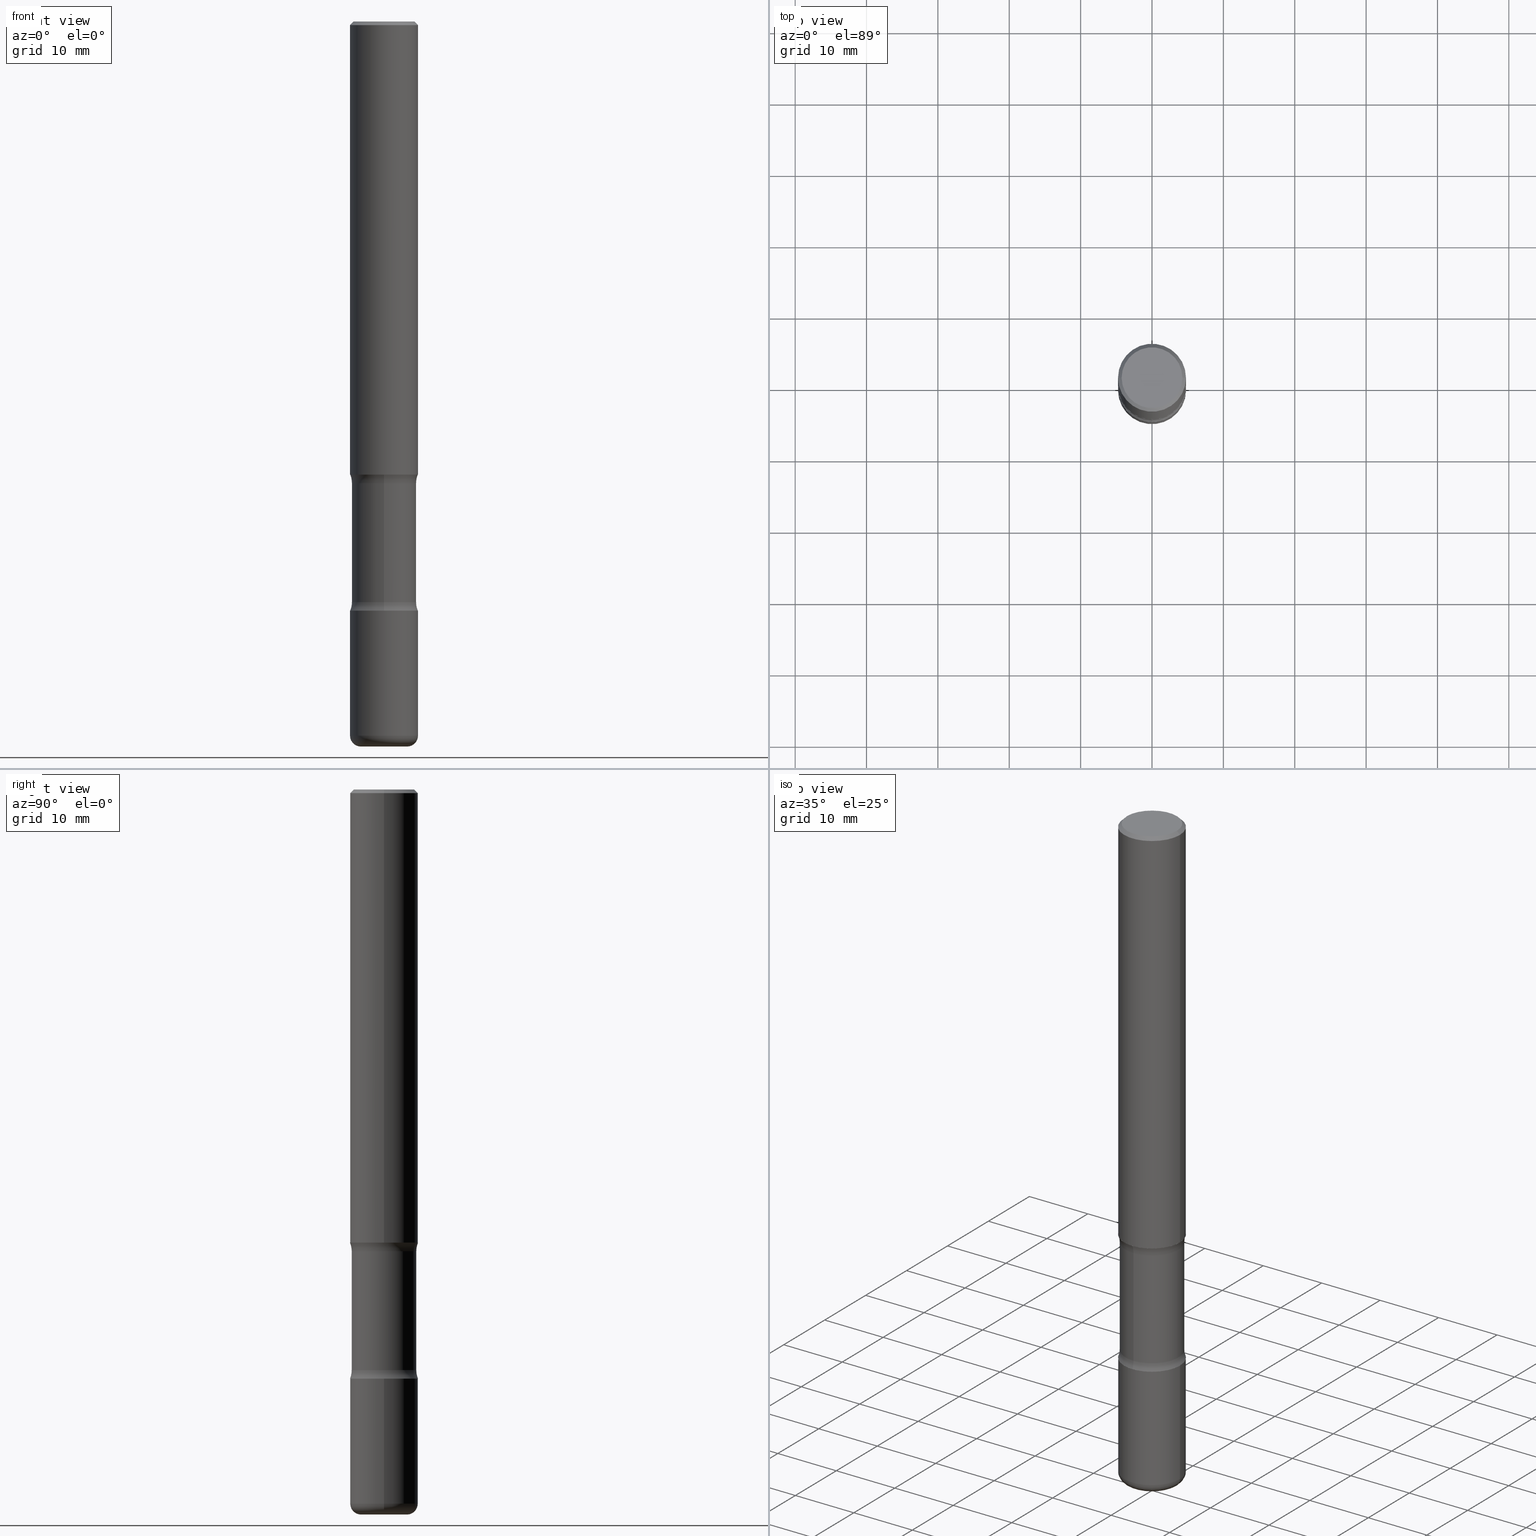
[diagram: canonical four-view strip — front | top / right | iso, engineering-drawing reading convention]
A machine part, canonical four-view strip (front | top / right | iso — engineering-drawing reading convention). The complete STEP part file that produces these views, byte-faithful:
ISO-10303-21;
HEADER;
FILE_DESCRIPTION (( 'STEP AP203' ),
    '1' );
FILE_NAME ('37846.STEP',
    '2024-03-02T00:45:00',
    ( '' ),
    ( '' ),
    'SwSTEP 2.0',
    'SolidWorks 2023',
    '' );
FILE_SCHEMA (( 'CONFIG_CONTROL_DESIGN' ));
ENDSEC;

DATA;
#1 = AXIS2_PLACEMENT_3D ( 'NONE', #51, #486, #481 ) ;
#2 = ORIENTED_EDGE ( 'NONE', *, *, #302, .F. ) ;
#3 = CARTESIAN_POINT ( 'NONE',  ( 7.831623907624765469E-29, -1.118148334468659010E-14, -3.202504112020091664 ) ) ;
#4 = ORIENTED_EDGE ( 'NONE', *, *, #65, .T. ) ;
#5 = APPROVAL_ROLE ( '' ) ;
#6 = ADVANCED_FACE ( 'NONE', ( #103 ), #472, .F. ) ;
#7 = DIRECTION ( 'NONE',  ( 6.982962677686266711E-15, 1.000000000000000000, -3.329354077496592130E-15 ) ) ;
#8 = EDGE_LOOP ( 'NONE', ( #158, #114, #477, #521 ) ) ;
#9 = APPROVAL ( #557, 'UNSPECIFIED' ) ;
#10 = APPROVAL_DATE_TIME ( #46, #518 ) ;
#11 = CARTESIAN_POINT ( 'NONE',  ( 0.1875000000000000278, -1.309305502066175008E-15, 9.142831454617381013E-30 ) ) ;
#12 = AXIS2_PLACEMENT_3D ( 'NONE', #150, #317, #523 ) ;
#13 = ORIENTED_EDGE ( 'NONE', *, *, #240, .T. ) ;
#14 = LOCAL_TIME ( 19, 45, 0.000000000000000000, #125 ) ;
#15 = DIRECTION ( 'NONE',  ( 0.7071067811865467956, -7.319954787623254468E-15, -0.7071067811865482389 ) ) ;
#16 = EDGE_LOOP ( 'NONE', ( #494, #25, #151, #400 ) ) ;
#17 = CARTESIAN_POINT ( 'NONE',  ( 6.150289227201164007E-29, -9.008429421428009851E-15, -2.547495887979908780 ) ) ;
#18 = ORIENTED_EDGE ( 'NONE', *, *, #34, .F. ) ;
#19 = DIRECTION ( 'NONE',  ( 2.558681667686983511E-29, -3.329354077496592524E-15, -1.000000000000000000 ) ) ;
#20 = EDGE_CURVE ( 'NONE', #485, #316, #93, .T. ) ;
#21 = EDGE_LOOP ( 'NONE', ( #264, #350, #227, #278 ) ) ;
#22 = CLOSED_SHELL ( 'NONE', ( #55, #6, #283, #295, #82, #357, #333, #556 ) ) ;
#23 = CIRCLE ( 'NONE', #179, 0.1250000000000000278 ) ;
#24 = DIRECTION ( 'NONE',  ( 2.445468806185136597E-29, -3.491481338843145583E-15, -1.000000000000000000 ) ) ;
#25 = ORIENTED_EDGE ( 'NONE', *, *, #182, .T. ) ;
#26 = DIRECTION ( 'NONE',  ( 1.000000000000000000, -6.982962677686273021E-15, 0.000000000000000000 ) ) ;
#27 = DIRECTION ( 'NONE',  ( 1.000000000000000000, -6.982962677686267499E-15, 0.000000000000000000 ) ) ;
#28 = DIRECTION ( 'NONE',  ( -1.000000000000000000, 6.982962677686265922E-15, -4.876176775795935793E-29 ) ) ;
#29 = DIRECTION ( 'NONE',  ( -1.000000000000000000, 6.982962677686265922E-15, 0.000000000000000000 ) ) ;
#30 = AXIS2_PLACEMENT_3D ( 'NONE', #450, #371, #420 ) ;
#31 = CARTESIAN_POINT ( 'NONE',  ( 4.890937612370289799E-31, -6.982962677686315028E-17, -0.02000000000000006981 ) ) ;
#32 = LOCAL_TIME ( 19, 45, 0.000000000000000000, #398 ) ;
#33 = DIRECTION ( 'NONE',  ( 1.000000000000000000, -6.982962677686269866E-15, 4.883557194083114022E-29 ) ) ;
#34 = EDGE_CURVE ( 'NONE', #316, #446, #451, .T. ) ;
#35 = PERSON_AND_ORGANIZATION ( #226, #163 ) ;
#36 = DIRECTION ( 'NONE',  ( 2.558681667686982950E-29, -3.329354077496592524E-15, -1.000000000000000000 ) ) ;
#37 = DIRECTION ( 'NONE',  ( 0.000000000000000000, 0.000000000000000000, 1.000000000000000000 ) ) ;
#38 = EDGE_CURVE ( 'NONE', #513, #149, #85, .T. ) ;
#39 = DIRECTION ( 'NONE',  ( 6.982962677686266711E-15, 1.000000000000000000, -3.067338098149349089E-15 ) ) ;
#40 = APPROVAL_STATUS ( 'not_yet_approved' ) ;
#41 = AXIS2_PLACEMENT_3D ( 'NONE', #166, #254, #215 ) ;
#42 = CONICAL_SURFACE ( 'NONE', #348, 0.1874999999999999167, 0.7853981633974472798 ) ;
#43 = DIRECTION ( 'NONE',  ( -2.445468806185136597E-29, 3.491481338843145583E-15, 1.000000000000000000 ) ) ;
#44 = APPROVAL_ROLE ( '' ) ;
#45 = ORIENTED_EDGE ( 'NONE', *, *, #50, .F. ) ;
#46 = DATE_AND_TIME ( #96, #32 ) ;
#47 = CIRCLE ( 'NONE', #382, 0.1781249999999999500 ) ;
#48 = AXIS2_PLACEMENT_3D ( 'NONE', #459, #167, #332 ) ;
#49 = ORIENTED_EDGE ( 'NONE', *, *, #352, .T. ) ;
#50 = EDGE_CURVE ( 'NONE', #266, #229, #452, .T. ) ;
#51 = CARTESIAN_POINT ( 'NONE',  ( 7.947773620101696182E-29, -1.134731435124022600E-14, -3.250000000000000444 ) ) ;
#52 = CC_DESIGN_PERSON_AND_ORGANIZATION_ASSIGNMENT ( #191, #358, ( #373 ) ) ;
#53 = ORIENTED_EDGE ( 'NONE', *, *, #38, .T. ) ;
#54 = LINE ( 'NONE', #349, #499 ) ;
#55 = ADVANCED_FACE ( 'NONE', ( #133 ), #381, .T. ) ;
#56 = ORIENTED_EDGE ( 'NONE', *, *, #244, .T. ) ;
#57 = DIRECTION ( 'NONE',  ( 6.860497997771532351E-15, 1.000000000000000000, 0.000000000000000000 ) ) ;
#58 = AXIS2_PLACEMENT_3D ( 'NONE', #250, #112, #356 ) ;
#59 = AXIS2_PLACEMENT_3D ( 'NONE', #277, #395, #438 ) ;
#60 = ORIENTED_EDGE ( 'NONE', *, *, #260, .T. ) ;
#61 = AXIS2_PLACEMENT_3D ( 'NONE', #330, #496, #115 ) ;
#62 = PERSON_AND_ORGANIZATION ( #226, #163 ) ;
#63 = DIRECTION ( 'NONE',  ( 2.558681667686983511E-29, -3.329354077496592524E-15, -1.000000000000000000 ) ) ;
#64 = EDGE_LOOP ( 'NONE', ( #45, #224 ) ) ;
#65 = EDGE_CURVE ( 'NONE', #229, #266, #515, .T. ) ;
#66 = CARTESIAN_POINT ( 'NONE',  ( 0.000000000000000000, 0.000000000000000000, 0.000000000000000000 ) ) ;
#67 = ORIENTED_EDGE ( 'NONE', *, *, #417, .F. ) ;
#68 = CARTESIAN_POINT ( 'NONE',  ( 0.1875000000000001110, -1.003800884917403995E-14, -2.500000000000000000 ) ) ;
#69 = DIRECTION ( 'NONE',  ( -2.445468806185136597E-29, 3.491481338843145583E-15, 1.000000000000000000 ) ) ;
#70 = VECTOR ( 'NONE', #527, 39.37007874015748143 ) ;
#71 = LOCAL_TIME ( 19, 45, 0.000000000000000000, #305 ) ;
#72 = CARTESIAN_POINT ( 'NONE',  ( 0.1875000000000001110, -1.506574197710817060E-14, -3.939999999999999947 ) ) ;
#73 = ORIENTED_EDGE ( 'NONE', *, *, #315, .T. ) ;
#74 = CARTESIAN_POINT ( 'NONE',  ( 9.781875224740546387E-29, -1.396592535537258233E-14, -4.000000000000000000 ) ) ;
#75 = DIRECTION ( 'NONE',  ( 1.000000000000000000, -6.982962677686266711E-15, 4.876176775795935793E-29 ) ) ;
#76 = CARTESIAN_POINT ( 'NONE',  ( 4.890937612370289799E-31, -6.982962677686315028E-17, -0.02000000000000006981 ) ) ;
#77 = EDGE_CURVE ( 'NONE', #497, #180, #122, .T. ) ;
#78 = DIRECTION ( 'NONE',  ( 1.000000000000000000, -6.860497997771530774E-15, 4.842784365940769113E-29 ) ) ;
#79 = CIRCLE ( 'NONE', #59, 0.1875000000000000833 ) ;
#80 = DIRECTION ( 'NONE',  ( 6.982962677686266711E-15, 1.000000000000000000, -3.067338098149349089E-15 ) ) ;
#81 = DIRECTION ( 'NONE',  ( -2.445468806185136597E-29, 3.491481338843145583E-15, 1.000000000000000000 ) ) ;
#82 = ADVANCED_FACE ( 'NONE', ( #422 ), #370, .F. ) ;
#83 = PERSON_AND_ORGANIZATION ( #226, #163 ) ;
#84 = DIRECTION ( 'NONE',  ( -2.445468806185136597E-29, 3.491481338843145583E-15, 1.000000000000000000 ) ) ;
#85 = CIRCLE ( 'NONE', #380, 0.1250000000000000278 ) ;
#86 = PERSON_AND_ORGANIZATION ( #226, #163 ) ;
#87 = AXIS2_PLACEMENT_3D ( 'NONE', #418, #253, #26 ) ;
#88 = ORIENTED_EDGE ( 'NONE', *, *, #220, .F. ) ;
#89 = EDGE_LOOP ( 'NONE', ( #117, #237, #247, #274 ) ) ;
#90 = EDGE_LOOP ( 'NONE', ( #18, #437, #49, #448 ) ) ;
#91 = MANIFOLD_SOLID_BREP ( 'Body-Move/Copy2[1]', #312 ) ;
#92 = DIRECTION ( 'NONE',  ( 2.558681667686983511E-29, -3.329354077496592524E-15, -1.000000000000000000 ) ) ;
#93 = CIRCLE ( 'NONE', #58, 0.1875000000000001110 ) ;
#94 = PRODUCT ( '37846', '37846', '', ( #560 ) ) ;
#95 = ORIENTED_EDGE ( 'NONE', *, *, #512, .F. ) ;
#96 = CALENDAR_DATE ( 2024, 1, 3 ) ;
#97 = CARTESIAN_POINT ( 'NONE',  ( 0.000000000000000000, 0.000000000000000000, 0.000000000000000000 ) ) ;
#98 = ADVANCED_FACE ( 'NONE', ( #502 ), #188, .T. ) ;
#99 = ORIENTED_EDGE ( 'NONE', *, *, #304, .F. ) ;
#100 = ADVANCED_FACE ( 'NONE', ( #124 ), #293, .T. ) ;
#101 = CARTESIAN_POINT ( 'NONE',  ( 0.1275000000000001132, -1.485625309677758386E-14, -4.000000000000000000 ) ) ;
#102 = MANIFOLD_SOLID_BREP ( 'Body-Move/Copy2[2]', #270 ) ;
#103 = FACE_OUTER_BOUND ( 'NONE', #324, .T. ) ;
#104 = DIRECTION ( 'NONE',  ( 1.000000000000000000, -6.860497997771530774E-15, 4.842784365940769113E-29 ) ) ;
#105 = CIRCLE ( 'NONE', #543, 0.1674999999999998990 ) ;
#106 = CIRCLE ( 'NONE', #525, 0.1875000000000001388 ) ;
#107 = ORIENTED_EDGE ( 'NONE', *, *, #257, .F. ) ;
#108 = AXIS2_PLACEMENT_3D ( 'NONE', #265, #294, #80 ) ;
#109 = EDGE_CURVE ( 'NONE', #440, #345, #105, .T. ) ;
#110 = MANIFOLD_SOLID_BREP ( 'Body-Move/Copy2[4]', #22 ) ;
#111 = CARTESIAN_POINT ( 'NONE',  ( 7.826246762236988201E-29, -1.118918372292999451E-14, -3.202504112020091664 ) ) ;
#112 = DIRECTION ( 'NONE',  ( -2.445468806185136597E-29, 3.491481338843145583E-15, 1.000000000000000000 ) ) ;
#113 = FACE_OUTER_BOUND ( 'NONE', #242, .T. ) ;
#114 = ORIENTED_EDGE ( 'NONE', *, *, #257, .T. ) ;
#115 = DIRECTION ( 'NONE',  ( 1.000000000000000000, -6.982962677686265922E-15, 4.876176775795935793E-29 ) ) ;
#116 = CC_DESIGN_DATE_AND_TIME_ASSIGNMENT ( #259, #218, ( #326 ) ) ;
#117 = ORIENTED_EDGE ( 'NONE', *, *, #77, .F. ) ;
#118 = AXIS2_PLACEMENT_3D ( 'NONE', #296, #173, #39 ) ;
#119 = TOROIDAL_SURFACE ( 'NONE', #319, 0.3031249999999999778, 0.1250000000000000278 ) ;
#120 = APPROVAL_PERSON_ORGANIZATION ( #384, #9, #511 ) ;
#121 = CARTESIAN_POINT ( 'NONE',  ( 1.309305502066255275E-15, 0.1874999999999887867, -3.250000000000001332 ) ) ;
#122 = LINE ( 'NONE', #212, #401 ) ;
#123 = FACE_OUTER_BOUND ( 'NONE', #90, .T. ) ;
#124 = FACE_OUTER_BOUND ( 'NONE', #16, .T. ) ;
#125 = COORDINATED_UNIVERSAL_TIME_OFFSET ( 5, 0, .BEHIND. ) ;
#126 = CARTESIAN_POINT ( 'NONE',  ( -0.1874999999999999167, 1.239475875289311118E-15, -0.02000000000000006981 ) ) ;
#127 = EDGE_CURVE ( 'NONE', #313, #180, #23, .T. ) ;
#128 = CIRCLE ( 'NONE', #287, 0.1874999999999999167 ) ;
#129 = DATE_AND_TIME ( #335, #272 ) ;
#130 = DIRECTION ( 'NONE',  ( -6.982962677686267499E-15, -1.000000000000000000, 0.000000000000000000 ) ) ;
#131 = EDGE_CURVE ( 'NONE', #446, #322, #490, .T. ) ;
#132 = CALENDAR_DATE ( 2024, 1, 3 ) ;
#133 = FACE_OUTER_BOUND ( 'NONE', #269, .T. ) ;
#134 = FACE_OUTER_BOUND ( 'NONE', #89, .T. ) ;
#135 = ORIENTED_EDGE ( 'NONE', *, *, #498, .F. ) ;
#136 = AXIS2_PLACEMENT_3D ( 'NONE', #532, #351, #192 ) ;
#137 = AXIS2_PLACEMENT_3D ( 'NONE', #387, #37, #430 ) ;
#138 = ORIENTED_EDGE ( 'NONE', *, *, #109, .F. ) ;
#139 = EDGE_CURVE ( 'NONE', #492, #306, #548, .T. ) ;
#140 = ORIENTED_EDGE ( 'NONE', *, *, #378, .F. ) ;
#141 = CARTESIAN_POINT ( 'NONE',  ( 1.243840226962943961E-15, 0.1781249999999887368, -3.202504112020092553 ) ) ;
#142 = EDGE_LOOP ( 'NONE', ( #135, #73, #232, #88 ) ) ;
#143 = EDGE_CURVE ( 'NONE', #306, #517, #501, .T. ) ;
#144 = FACE_OUTER_BOUND ( 'NONE', #559, .T. ) ;
#145 = CIRCLE ( 'NONE', #136, 0.1781249999999999223 ) ;
#146 = EDGE_LOOP ( 'NONE', ( #519, #138, #456, #431 ) ) ;
#147 = DIRECTION ( 'NONE',  ( -2.445468806185136597E-29, 3.491481338843145583E-15, 1.000000000000000000 ) ) ;
#148 = APPLICATION_CONTEXT ( 'configuration controlled 3d designs of mechanical parts and assemblies' ) ;
#149 = VERTEX_POINT ( 'NONE', #416 ) ;
#150 = CARTESIAN_POINT ( 'NONE',  ( -0.1275000000000001132, -1.285049448694786508E-14, -3.939999999999999947 ) ) ;
#151 = ORIENTED_EDGE ( 'NONE', *, *, #249, .T. ) ;
#152 = DIRECTION ( 'NONE',  ( 2.558681667686983511E-29, -3.329354077496592524E-15, -1.000000000000000000 ) ) ;
#153 = AXIS2_PLACEMENT_3D ( 'NONE', #408, #547, #375 ) ;
#154 = EDGE_LOOP ( 'NONE', ( #2, #4, #198, #442 ) ) ;
#155 = DIRECTION ( 'NONE',  ( 1.000000000000000000, -6.982962677686265922E-15, 4.876176775795935793E-29 ) ) ;
#156 = CARTESIAN_POINT ( 'NONE',  ( 9.781875224740546387E-29, -1.396592535537258233E-14, -4.000000000000000000 ) ) ;
#157 = CARTESIAN_POINT ( 'NONE',  ( -0.1875000000000001110, -1.242416884549180617E-14, -3.939999999999999947 ) ) ;
#158 = ORIENTED_EDGE ( 'NONE', *, *, #159, .F. ) ;
#159 = EDGE_CURVE ( 'NONE', #497, #513, #47, .T. ) ;
#160 = DIRECTION ( 'NONE',  ( 1.000000000000000000, -6.982962677686265922E-15, 0.000000000000000000 ) ) ;
#161 = CARTESIAN_POINT ( 'NONE',  ( 9.635147096369438236E-29, -1.375643647504199401E-14, -3.939999999999999947 ) ) ;
#162 = CIRCLE ( 'NONE', #153, 0.1875000000000000833 ) ;
#163 = ORGANIZATION ( 'UNSPECIFIED', 'UNSPECIFIED', '' ) ;
#164 = ADVANCED_FACE ( 'NONE', ( #419 ), #42, .T. ) ;
#165 = DIRECTION ( 'NONE',  ( 2.438088387897960049E-29, -3.491481338843145188E-15, -1.000000000000000000 ) ) ;
#166 = CARTESIAN_POINT ( 'NONE',  ( 9.781875224740546387E-29, -1.396592535537258233E-14, -4.000000000000000000 ) ) ;
#167 = DIRECTION ( 'NONE',  ( -2.445468806185136597E-29, 3.491481338843145583E-15, 1.000000000000000000 ) ) ;
#168 = DIRECTION ( 'NONE',  ( 6.982962677686266711E-15, 1.000000000000000000, -3.067338098149349089E-15 ) ) ;
#169 = CALENDAR_DATE ( 2024, 1, 3 ) ;
#170 = DIRECTION ( 'NONE',  ( -2.445468806185136877E-29, 3.491481338843145188E-15, 1.000000000000000000 ) ) ;
#171 = VECTOR ( 'NONE', #427, 39.37007874015748143 ) ;
#172 = CARTESIAN_POINT ( 'NONE',  ( 1.243840226962964471E-15, 0.1781249999999861278, -4.000000000000000888 ) ) ;
#173 = DIRECTION ( 'NONE',  ( 2.558681667686983511E-29, -3.329354077496592524E-15, -1.000000000000000000 ) ) ;
#174 = PERSON_AND_ORGANIZATION ( #226, #163 ) ;
#175 = ORIENTED_EDGE ( 'NONE', *, *, #20, .F. ) ;
#176 = APPROVAL_DATE_TIME ( #129, #9 ) ;
#177 = ORIENTED_EDGE ( 'NONE', *, *, #205, .F. ) ;
#178 = CYLINDRICAL_SURFACE ( 'NONE', #535, 0.1875000000000000278 ) ;
#179 = AXIS2_PLACEMENT_3D ( 'NONE', #376, #78, #256 ) ;
#180 = VERTEX_POINT ( 'NONE', #550 ) ;
#181 = FACE_OUTER_BOUND ( 'NONE', #202, .T. ) ;
#182 = EDGE_CURVE ( 'NONE', #492, #531, #307, .T. ) ;
#183 = ORIENTED_EDGE ( 'NONE', *, *, #512, .T. ) ;
#184 = PERSON_AND_ORGANIZATION_ROLE ( 'classification_officer' ) ;
#185 = CARTESIAN_POINT ( 'NONE',  ( 0.1875000000000001110, -1.309305502066175797E-15, 9.142831454617385217E-30 ) ) ;
#186 = ORIENTED_EDGE ( 'NONE', *, *, #302, .T. ) ;
#187 = CARTESIAN_POINT ( 'NONE',  ( 0.1874999999999999167, -1.356173001359024677E-15, -0.02000000000000006981 ) ) ;
#188 = TOROIDAL_SURFACE ( 'NONE', #234, 0.1275000000000001132, 0.05999999999999996309 ) ;
#189 = VECTOR ( 'NONE', #170, 39.37007874015748143 ) ;
#190 = ORIENTED_EDGE ( 'NONE', *, *, #495, .F. ) ;
#191 = PERSON_AND_ORGANIZATION ( #226, #163 ) ;
#192 = DIRECTION ( 'NONE',  ( 6.982962677686265133E-15, 1.000000000000000000, -3.067338098149349483E-15 ) ) ;
#193 = ORIENTED_EDGE ( 'NONE', *, *, #244, .F. ) ;
#194 = DIRECTION ( 'NONE',  ( 2.558681667686983511E-29, -3.329354077496592524E-15, -1.000000000000000000 ) ) ;
#195 = DIRECTION ( 'NONE',  ( 2.558681667686983511E-29, -3.329354077496592524E-15, -1.000000000000000000 ) ) ;
#196 = DIRECTION ( 'NONE',  ( -2.445468806185136597E-29, 3.491481338843145583E-15, 1.000000000000000000 ) ) ;
#197 = AXIS2_PLACEMENT_3D ( 'NONE', #374, #464, #258 ) ;
#198 = ORIENTED_EDGE ( 'NONE', *, *, #391, .T. ) ;
#199 = VECTOR ( 'NONE', #465, 39.37007874015748143 ) ;
#200 = DIRECTION ( 'NONE',  ( 6.982962677686266711E-15, 1.000000000000000000, -2.913971193241878794E-15 ) ) ;
#201 = ADVANCED_BREP_SHAPE_REPRESENTATION ( '37846', ( #91, #102, #110, #137 ), #289 ) ;
#202 = EDGE_LOOP ( 'NONE', ( #107, #478, #53, #320 ) ) ;
#203 = ADVANCED_FACE ( 'NONE', ( #466 ), #271, .T. ) ;
#204 = DIRECTION ( 'NONE',  ( -1.000000000000000000, 6.982962677686265922E-15, -4.876176775795935793E-29 ) ) ;
#205 = EDGE_CURVE ( 'NONE', #433, #308, #338, .T. ) ;
#206 = CARTESIAN_POINT ( 'NONE',  ( 4.890937612370289799E-31, -6.982962677686315028E-17, -0.02000000000000006981 ) ) ;
#207 = FACE_OUTER_BOUND ( 'NONE', #410, .T. ) ;
#208 = AXIS2_PLACEMENT_3D ( 'NONE', #209, #81, #75 ) ;
#209 = CARTESIAN_POINT ( 'NONE',  ( 0.000000000000000000, 0.000000000000000000, 0.000000000000000000 ) ) ;
#210 = TOROIDAL_SURFACE ( 'NONE', #353, 0.3031249999999999778, 0.1250000000000000278 ) ;
#211 = FACE_OUTER_BOUND ( 'NONE', #482, .T. ) ;
#212 = CARTESIAN_POINT ( 'NONE',  ( -1.222026205852954821E-15, -0.1781250000000138001, -3.999999999999999556 ) ) ;
#213 = APPLICATION_PROTOCOL_DEFINITION ( 'international standard', 'config_control_design', 1994, #223 ) ;
#214 = CARTESIAN_POINT ( 'NONE',  ( 9.635147096369438236E-29, -1.375643647504199401E-14, -3.939999999999999947 ) ) ;
#215 = DIRECTION ( 'NONE',  ( 1.000000000000000000, -6.982962677686269866E-15, 0.000000000000000000 ) ) ;
#216 = AXIS2_PLACEMENT_3D ( 'NONE', #156, #69, #337 ) ;
#217 = AXIS2_PLACEMENT_3D ( 'NONE', #76, #24, #321 ) ;
#218 = DATE_TIME_ROLE ( 'creation_date' ) ;
#219 = DIRECTION ( 'NONE',  ( -2.558681667686982950E-29, 3.329354077496592524E-15, 1.000000000000000000 ) ) ;
#220 = EDGE_CURVE ( 'NONE', #440, #446, #504, .T. ) ;
#221 = PERSON_AND_ORGANIZATION_ROLE ( 'design_owner' ) ;
#222 = ORIENTED_EDGE ( 'NONE', *, *, #205, .T. ) ;
#223 = APPLICATION_CONTEXT ( 'configuration controlled 3d designs of mechanical parts and assemblies' ) ;
#224 = ORIENTED_EDGE ( 'NONE', *, *, #65, .F. ) ;
#225 = AXIS2_PLACEMENT_3D ( 'NONE', #379, #510, #291 ) ;
#226 = PERSON ( 'UNSPECIFIED', 'UNSPECIFIED', 'UNSPECIFIED', ('UNSPECIFIED'), ('UNSPECIFIED'), ('UNSPECIFIED') ) ;
#227 = ORIENTED_EDGE ( 'NONE', *, *, #449, .F. ) ;
#228 = LINE ( 'NONE', #185, #372 ) ;
#229 = VERTEX_POINT ( 'NONE', #314 ) ;
#230 = SECURITY_CLASSIFICATION_LEVEL ( 'unclassified' ) ;
#231 = LINE ( 'NONE', #11, #70 ) ;
#232 = ORIENTED_EDGE ( 'NONE', *, *, #449, .T. ) ;
#233 = PERSON_AND_ORGANIZATION ( #226, #163 ) ;
#234 = AXIS2_PLACEMENT_3D ( 'NONE', #214, #84, #33 ) ;
#235 = CARTESIAN_POINT ( 'NONE',  ( 6.113672015462842613E-29, -8.728703347107864943E-15, -2.500000000000000000 ) ) ;
#236 = AXIS2_PLACEMENT_3D ( 'NONE', #3, #63, #238 ) ;
#237 = ORIENTED_EDGE ( 'NONE', *, *, #159, .T. ) ;
#238 = DIRECTION ( 'NONE',  ( 6.982962677686266711E-15, 1.000000000000000000, -3.329354077496592130E-15 ) ) ;
#239 = CARTESIAN_POINT ( 'NONE',  ( -0.1875000000000000278, 1.332267629550188046E-15, -9.223003294227947991E-30 ) ) ;
#240 = EDGE_CURVE ( 'NONE', #517, #306, #421, .T. ) ;
#241 = DIRECTION ( 'NONE',  ( -2.445468806185136597E-29, 3.491481338843145583E-15, 1.000000000000000000 ) ) ;
#242 = EDGE_LOOP ( 'NONE', ( #533, #540 ) ) ;
#243 = CARTESIAN_POINT ( 'NONE',  ( -1.254184790217547253E-15, -0.1781250000000089706, -2.547495887979908336 ) ) ;
#244 = EDGE_CURVE ( 'NONE', #433, #313, #79, .T. ) ;
#245 = AXIS2_PLACEMENT_3D ( 'NONE', #453, #447, #204 ) ;
#246 = DESIGN_CONTEXT ( 'detailed design', #223, 'design' ) ;
#247 = ORIENTED_EDGE ( 'NONE', *, *, #549, .T. ) ;
#248 = CARTESIAN_POINT ( 'NONE',  ( -0.1874999999999999167, 1.239475875289311118E-15, -0.02000000000000006981 ) ) ;
#249 = EDGE_CURVE ( 'NONE', #531, #517, #228, .T. ) ;
#250 = CARTESIAN_POINT ( 'NONE',  ( 6.113672015462842613E-29, -8.728703347107864943E-15, -2.500000000000000000 ) ) ;
#251 = PLANE ( 'NONE',  #544 ) ;
#252 = CARTESIAN_POINT ( 'NONE',  ( 6.150289227201164007E-29, -9.008429421428009851E-15, -2.547495887979908780 ) ) ;
#253 = DIRECTION ( 'NONE',  ( -6.982962677686266711E-15, -1.000000000000000000, 3.491481338843145583E-15 ) ) ;
#254 = DIRECTION ( 'NONE',  ( -2.445468806185136597E-29, 3.491481338843145583E-15, 1.000000000000000000 ) ) ;
#255 = CIRCLE ( 'NONE', #262, 0.1250000000000000278 ) ;
#256 = DIRECTION ( 'NONE',  ( 6.860497997771529985E-15, 1.000000000000000000, 0.000000000000000000 ) ) ;
#257 = EDGE_CURVE ( 'NONE', #497, #311, #255, .T. ) ;
#258 = DIRECTION ( 'NONE',  ( 1.000000000000000000, -6.982962677686265922E-15, 0.000000000000000000 ) ) ;
#259 = DATE_AND_TIME ( #169, #71 ) ;
#260 = EDGE_CURVE ( 'NONE', #180, #308, #145, .T. ) ;
#261 = DIRECTION ( 'NONE',  ( 1.000000000000000000, -6.982962677686263555E-15, 0.000000000000000000 ) ) ;
#262 = AXIS2_PLACEMENT_3D ( 'NONE', #404, #104, #57 ) ;
#263 = DIRECTION ( 'NONE',  ( 1.000000000000000000, -6.982962677686265922E-15, 4.876176775795935793E-29 ) ) ;
#264 = ORIENTED_EDGE ( 'NONE', *, *, #20, .T. ) ;
#265 = CARTESIAN_POINT ( 'NONE',  ( 9.866784870866931853E-29, -1.384432990936266734E-14, -4.000000000000000000 ) ) ;
#266 = VERTEX_POINT ( 'NONE', #101 ) ;
#267 = CC_DESIGN_PERSON_AND_ORGANIZATION_ASSIGNMENT ( #86, #514, ( #373 ) ) ;
#268 = DATE_AND_TIME ( #522, #403 ) ;
#269 = EDGE_LOOP ( 'NONE', ( #388, #407, #95, #280 ) ) ;
#270 = CLOSED_SHELL ( 'NONE', ( #436, #164, #368, #396, #479, #538 ) ) ;
#271 = TOROIDAL_SURFACE ( 'NONE', #462, 0.1275000000000001132, 0.05999999999999996309 ) ;
#272 = LOCAL_TIME ( 19, 45, 0.000000000000000000, #471 ) ;
#273 = CARTESIAN_POINT ( 'NONE',  ( 6.158285255761511137E-29, -8.996978653423909512E-15, -2.547495887979908780 ) ) ;
#274 = ORIENTED_EDGE ( 'NONE', *, *, #260, .F. ) ;
#275 = DIRECTION ( 'NONE',  ( 6.982962677686266711E-15, 1.000000000000000000, -3.067338098149349089E-15 ) ) ;
#276 = ORIENTED_EDGE ( 'NONE', *, *, #139, .T. ) ;
#277 = CARTESIAN_POINT ( 'NONE',  ( 7.947773620101696182E-29, -1.134731435124022600E-14, -3.250000000000000444 ) ) ;
#278 = ORIENTED_EDGE ( 'NONE', *, *, #352, .F. ) ;
#279 = AXIS2_PLACEMENT_3D ( 'NONE', #66, #196, #155 ) ;
#280 = ORIENTED_EDGE ( 'NONE', *, *, #549, .F. ) ;
#281 = DIRECTION ( 'NONE',  ( 2.558681667686983511E-29, -3.329354077496592524E-15, -1.000000000000000000 ) ) ;
#282 = CARTESIAN_POINT ( 'NONE',  ( 2.116710561673711128E-15, 0.3031249999999910405, -2.547495887979910112 ) ) ;
#283 = ADVANCED_FACE ( 'NONE', ( #310 ), #210, .F. ) ;
#284 = PLANE ( 'NONE',  #30 ) ;
#285 = ORIENTED_EDGE ( 'NONE', *, *, #391, .F. ) ;
#286 = DIRECTION ( 'NONE',  ( 2.438088387897960049E-29, -3.491481338843145188E-15, -1.000000000000000000 ) ) ;
#287 = AXIS2_PLACEMENT_3D ( 'NONE', #31, #241, #160 ) ;
#288 = ORIENTED_EDGE ( 'NONE', *, *, #143, .T. ) ;
#289 =( GEOMETRIC_REPRESENTATION_CONTEXT ( 3 ) GLOBAL_UNCERTAINTY_ASSIGNED_CONTEXT ( ( #409 ) ) GLOBAL_UNIT_ASSIGNED_CONTEXT ( ( #509, #558, #346 ) ) REPRESENTATION_CONTEXT ( 'NONE', 'WORKASPACE' ) );
#290 = CYLINDRICAL_SURFACE ( 'NONE', #279, 0.1875000000000000278 ) ;
#291 = DIRECTION ( 'NONE',  ( 1.000000000000000000, -6.982962677686269866E-15, 0.000000000000000000 ) ) ;
#292 = FACE_OUTER_BOUND ( 'NONE', #21, .T. ) ;
#293 = CYLINDRICAL_SURFACE ( 'NONE', #208, 0.1875000000000001110 ) ;
#294 = DIRECTION ( 'NONE',  ( 2.558681667686983511E-29, -3.329354077496592524E-15, -1.000000000000000000 ) ) ;
#295 = ADVANCED_FACE ( 'NONE', ( #181 ), #119, .F. ) ;
#296 = CARTESIAN_POINT ( 'NONE',  ( 9.866784870866931853E-29, -1.384432990936266734E-14, -4.000000000000000000 ) ) ;
#297 = AXIS2_PLACEMENT_3D ( 'NONE', #235, #43, #261 ) ;
#298 = CC_DESIGN_DATE_AND_TIME_ASSIGNMENT ( #268, #394, ( #383 ) ) ;
#299 = DIRECTION ( 'NONE',  ( -2.445468806185136597E-29, 3.491481338843145583E-15, 1.000000000000000000 ) ) ;
#300 = DIRECTION ( 'NONE',  ( 2.558681667686983511E-29, -3.329354077496592524E-15, -1.000000000000000000 ) ) ;
#301 = APPROVAL_DATE_TIME ( #505, #461 ) ;
#302 = EDGE_CURVE ( 'NONE', #229, #492, #443, .T. ) ;
#303 = CARTESIAN_POINT ( 'NONE',  ( 6.113672015462842613E-29, -8.728703347107864943E-15, -2.500000000000000000 ) ) ;
#304 = EDGE_CURVE ( 'NONE', #316, #485, #507, .T. ) ;
#305 = COORDINATED_UNIVERSAL_TIME_OFFSET ( 5, 0, .BEHIND. ) ;
#306 = VERTEX_POINT ( 'NONE', #488 ) ;
#307 = CIRCLE ( 'NONE', #434, 0.1875000000000001388 ) ;
#308 = VERTEX_POINT ( 'NONE', #141 ) ;
#309 = EDGE_LOOP ( 'NONE', ( #432, #67 ) ) ;
#310 = FACE_OUTER_BOUND ( 'NONE', #8, .T. ) ;
#311 = VERTEX_POINT ( 'NONE', #385 ) ;
#312 = CLOSED_SHELL ( 'NONE', ( #340, #203, #455, #98, #100, #467 ) ) ;
#313 = VERTEX_POINT ( 'NONE', #435 ) ;
#314 = CARTESIAN_POINT ( 'NONE',  ( -0.1275000000000001132, -1.274207610638512978E-14, -4.000000000000000000 ) ) ;
#315 = EDGE_CURVE ( 'NONE', #345, #322, #54, .T. ) ;
#316 = VERTEX_POINT ( 'NONE', #359 ) ;
#317 = DIRECTION ( 'NONE',  ( 7.105427357601001859E-15, 1.000000000000000000, -3.491481338843145583E-15 ) ) ;
#318 = PLANE ( 'NONE',  #389 ) ;
#319 = AXIS2_PLACEMENT_3D ( 'NONE', #273, #152, #7 ) ;
#320 = ORIENTED_EDGE ( 'NONE', *, *, #399, .T. ) ;
#321 = DIRECTION ( 'NONE',  ( -1.000000000000000000, 6.982962677686265922E-15, 0.000000000000000000 ) ) ;
#322 = VERTEX_POINT ( 'NONE', #187 ) ;
#323 = DIRECTION ( 'NONE',  ( 2.558681667686983511E-29, -3.329354077496592524E-15, -1.000000000000000000 ) ) ;
#324 = EDGE_LOOP ( 'NONE', ( #140, #414, #60, #177 ) ) ;
#325 = DIRECTION ( 'NONE',  ( -6.982962677686265922E-15, -1.000000000000000000, 3.329354077496592524E-15 ) ) ;
#326 = PRODUCT_DEFINITION ( 'UNKNOWN', '', #373, #246 ) ;
#327 = CIRCLE ( 'NONE', #534, 0.1781249999999999500 ) ;
#328 = APPROVAL_PERSON_ORGANIZATION ( #174, #461, #44 ) ;
#329 = CARTESIAN_POINT ( 'NONE',  ( -0.1875000000000001110, 1.332267629550188637E-15, -9.223003294227953596E-30 ) ) ;
#330 = CARTESIAN_POINT ( 'NONE',  ( 0.000000000000000000, 0.000000000000000000, 0.000000000000000000 ) ) ;
#331 = DIRECTION ( 'NONE',  ( -2.445468806185136597E-29, 3.491481338843145583E-15, 1.000000000000000000 ) ) ;
#332 = DIRECTION ( 'NONE',  ( 1.000000000000000000, -6.982962677686267499E-15, 0.000000000000000000 ) ) ;
#333 = ADVANCED_FACE ( 'NONE', ( #445 ), #516, .F. ) ;
#334 = CARTESIAN_POINT ( 'NONE',  ( 2.116710561673727694E-15, 0.3031249999999888201, -3.202504112020092997 ) ) ;
#335 = CALENDAR_DATE ( 2024, 1, 3 ) ;
#336 = AXIS2_PLACEMENT_3D ( 'NONE', #489, #195, #365 ) ;
#337 = DIRECTION ( 'NONE',  ( 1.000000000000000000, -6.982962677686269866E-15, 0.000000000000000000 ) ) ;
#338 = CIRCLE ( 'NONE', #428, 0.1250000000000000278 ) ;
#339 = CC_DESIGN_APPROVAL ( #518, ( #383 ) ) ;
#340 = ADVANCED_FACE ( 'NONE', ( #144 ), #484, .T. ) ;
#341 = CARTESIAN_POINT ( 'NONE',  ( 0.000000000000000000, 0.000000000000000000, 0.000000000000000000 ) ) ;
#342 = DIRECTION ( 'NONE',  ( 6.982962677686265922E-15, 1.000000000000000000, -3.329354077496592524E-15 ) ) ;
#343 = EDGE_CURVE ( 'NONE', #513, #497, #327, .T. ) ;
#344 =( LENGTH_UNIT ( ) NAMED_UNIT ( * ) SI_UNIT ( $, .METRE. ) );
#345 = VERTEX_POINT ( 'NONE', #355 ) ;
#346 =( NAMED_UNIT ( * ) SI_UNIT ( $, .STERADIAN. ) SOLID_ANGLE_UNIT ( ) );
#347 = EDGE_LOOP ( 'NONE', ( #56, #487 ) ) ;
#348 = AXIS2_PLACEMENT_3D ( 'NONE', #206, #542, #29 ) ;
#349 = CARTESIAN_POINT ( 'NONE',  ( 0.1874999999999999167, -1.356173001359024677E-15, -0.02000000000000006981 ) ) ;
#350 = ORIENTED_EDGE ( 'NONE', *, *, #34, .T. ) ;
#351 = DIRECTION ( 'NONE',  ( 2.558681667686983511E-29, -3.329354077496592524E-15, -1.000000000000000000 ) ) ;
#352 = EDGE_CURVE ( 'NONE', #485, #322, #231, .T. ) ;
#353 = AXIS2_PLACEMENT_3D ( 'NONE', #441, #92, #530 ) ;
#354 = CC_DESIGN_APPROVAL ( #9, ( #373 ) ) ;
#355 = CARTESIAN_POINT ( 'NONE',  ( 0.1674999999999998990, -1.252653207992877500E-15, 8.469775550109235181E-30 ) ) ;
#356 = DIRECTION ( 'NONE',  ( 1.000000000000000000, -6.982962677686263555E-15, 0.000000000000000000 ) ) ;
#357 = ADVANCED_FACE ( 'NONE', ( #361 ), #318, .F. ) ;
#358 = PERSON_AND_ORGANIZATION_ROLE ( 'design_supplier' ) ;
#359 = CARTESIAN_POINT ( 'NONE',  ( -0.1875000000000000833, -3.066998857392172722E-15, -2.500000000000000000 ) ) ;
#360 = ORIENTED_EDGE ( 'NONE', *, *, #240, .F. ) ;
#361 = FACE_OUTER_BOUND ( 'NONE', #347, .T. ) ;
#362 = CC_DESIGN_PERSON_AND_ORGANIZATION_ASSIGNMENT ( #83, #377, ( #326 ) ) ;
#363 = DIRECTION ( 'NONE',  ( -2.445468806185136877E-29, 3.491481338843145188E-15, 1.000000000000000000 ) ) ;
#364 = DIRECTION ( 'NONE',  ( 6.982962677686266711E-15, 1.000000000000000000, -2.913971193241878794E-15 ) ) ;
#365 = DIRECTION ( 'NONE',  ( 6.982962677686266711E-15, 1.000000000000000000, -3.329354077496592130E-15 ) ) ;
#366 = PLANE ( 'NONE',  #553 ) ;
#367 = ORIENTED_EDGE ( 'NONE', *, *, #249, .F. ) ;
#368 = ADVANCED_FACE ( 'NONE', ( #500 ), #454, .T. ) ;
#369 = CARTESIAN_POINT ( 'NONE',  ( -0.1674999999999998990, 1.204561061900880061E-15, -8.301862719484106184E-30 ) ) ;
#370 = PLANE ( 'NONE',  #426 ) ;
#371 = DIRECTION ( 'NONE',  ( -2.438088387897960049E-29, 3.491481338843145188E-15, 1.000000000000000000 ) ) ;
#372 = VECTOR ( 'NONE', #520, 39.37007874015748143 ) ;
#373 = PRODUCT_DEFINITION_FORMATION_WITH_SPECIFIED_SOURCE ( 'ANY', '', #94, .NOT_KNOWN. ) ;
#374 = CARTESIAN_POINT ( 'NONE',  ( 4.890937612370289799E-31, -6.982962677686315028E-17, -0.02000000000000006981 ) ) ;
#375 = DIRECTION ( 'NONE',  ( 6.982962677686266711E-15, 1.000000000000000000, -2.913971193241879583E-15 ) ) ;
#376 = CARTESIAN_POINT ( 'NONE',  ( -2.079588455574416777E-15, -0.3031250000000111355, -3.202504112020090776 ) ) ;
#377 = PERSON_AND_ORGANIZATION_ROLE ( 'creator' ) ;
#378 = EDGE_CURVE ( 'NONE', #313, #433, #162, .T. ) ;
#379 = CARTESIAN_POINT ( 'NONE',  ( 7.947773620101696182E-29, -1.134731435124022600E-14, -3.250000000000000444 ) ) ;
#380 = AXIS2_PLACEMENT_3D ( 'NONE', #282, #528, #537 ) ;
#381 = CYLINDRICAL_SURFACE ( 'NONE', #118, 0.1781249999999999500 ) ;
#382 = AXIS2_PLACEMENT_3D ( 'NONE', #252, #300, #168 ) ;
#383 = SECURITY_CLASSIFICATION ( '', '', #230 ) ;
#384 = PERSON_AND_ORGANIZATION ( #226, #163 ) ;
#385 = CARTESIAN_POINT ( 'NONE',  ( -1.286343374582102609E-15, -0.1875000000000089651, -2.499999999999999556 ) ) ;
#386 = LINE ( 'NONE', #172, #199 ) ;
#387 = CARTESIAN_POINT ( 'NONE',  ( 0.000000000000000000, 0.000000000000000000, 0.000000000000000000 ) ) ;
#388 = ORIENTED_EDGE ( 'NONE', *, *, #343, .T. ) ;
#389 = AXIS2_PLACEMENT_3D ( 'NONE', #491, #219, #325 ) ;
#390 = CIRCLE ( 'NONE', #61, 0.1674999999999998990 ) ;
#391 = EDGE_CURVE ( 'NONE', #266, #531, #413, .T. ) ;
#392 = SHAPE_DEFINITION_REPRESENTATION ( #439, #201 ) ;
#393 = EDGE_LOOP ( 'NONE', ( #524, #186, #190, #285 ) ) ;
#394 = DATE_TIME_ROLE ( 'classification_date' ) ;
#395 = DIRECTION ( 'NONE',  ( 2.558681667686983511E-29, -3.329354077496592524E-15, -1.000000000000000000 ) ) ;
#396 = ADVANCED_FACE ( 'NONE', ( #113 ), #541, .F. ) ;
#397 = EDGE_LOOP ( 'NONE', ( #405, #193, #222, #183 ) ) ;
#398 = COORDINATED_UNIVERSAL_TIME_OFFSET ( 5, 0, .BEHIND. ) ;
#399 = EDGE_CURVE ( 'NONE', #149, #311, #106, .T. ) ;
#400 = ORIENTED_EDGE ( 'NONE', *, *, #143, .F. ) ;
#401 = VECTOR ( 'NONE', #458, 39.37007874015748143 ) ;
#402 = CIRCLE ( 'NONE', #473, 0.1875000000000001388 ) ;
#403 = LOCAL_TIME ( 19, 45, 0.000000000000000000, #480 ) ;
#404 = CARTESIAN_POINT ( 'NONE',  ( -2.079588455574433343E-15, -0.3031250000000089706, -2.547495887979907891 ) ) ;
#405 = ORIENTED_EDGE ( 'NONE', *, *, #127, .F. ) ;
#406 = DIRECTION ( 'NONE',  ( 1.000000000000000000, -6.982962677686266711E-15, 4.876176775795935793E-29 ) ) ;
#407 = ORIENTED_EDGE ( 'NONE', *, *, #77, .T. ) ;
#408 = CARTESIAN_POINT ( 'NONE',  ( 7.947773620101696182E-29, -1.134731435124022600E-14, -3.250000000000000444 ) ) ;
#409 = UNCERTAINTY_MEASURE_WITH_UNIT (LENGTH_MEASURE( 1.000000000000000082E-05 ), #509, 'distance_accuracy_value', 'NONE');
#410 = EDGE_LOOP ( 'NONE', ( #175, #99 ) ) ;
#411 = VECTOR ( 'NONE', #363, 39.37007874015748143 ) ;
#412 = CARTESIAN_POINT ( 'NONE',  ( 1.243840226962927197E-15, 0.1781249999999909572, -2.547495887979909224 ) ) ;
#413 = CIRCLE ( 'NONE', #87, 0.05999999999999995615 ) ;
#414 = ORIENTED_EDGE ( 'NONE', *, *, #127, .T. ) ;
#415 = DIRECTION ( 'NONE',  ( -1.000000000000000000, 6.982962677686265922E-15, -4.876176775795935793E-29 ) ) ;
#416 = CARTESIAN_POINT ( 'NONE',  ( 1.309305502066236145E-15, 0.1874999999999913125, -2.500000000000000444 ) ) ;
#417 = EDGE_CURVE ( 'NONE', #311, #149, #402, .T. ) ;
#418 = CARTESIAN_POINT ( 'NONE',  ( 0.1275000000000001132, -1.464676421644699397E-14, -3.939999999999999947 ) ) ;
#419 = FACE_OUTER_BOUND ( 'NONE', #142, .T. ) ;
#420 = DIRECTION ( 'NONE',  ( 1.000000000000000000, -6.982962677686265922E-15, 4.876176775795935793E-29 ) ) ;
#421 = CIRCLE ( 'NONE', #1, 0.1875000000000000833 ) ;
#422 = FACE_OUTER_BOUND ( 'NONE', #309, .T. ) ;
#423 = PRODUCT_RELATED_PRODUCT_CATEGORY ( 'detail', '', ( #94 ) ) ;
#424 = CARTESIAN_POINT ( 'NONE',  ( 9.635147096369438236E-29, -1.375643647504199401E-14, -3.939999999999999947 ) ) ;
#425 = CARTESIAN_POINT ( 'NONE',  ( 0.000000000000000000, 0.000000000000000000, 0.000000000000000000 ) ) ;
#426 = AXIS2_PLACEMENT_3D ( 'NONE', #303, #36, #342 ) ;
#427 = DIRECTION ( 'NONE',  ( -0.7071067811865467956, 2.468850131082249172E-15, -0.7071067811865482389 ) ) ;
#428 = AXIS2_PLACEMENT_3D ( 'NONE', #334, #555, #130 ) ;
#429 = CC_DESIGN_PERSON_AND_ORGANIZATION_ASSIGNMENT ( #35, #221, ( #94 ) ) ;
#430 = DIRECTION ( 'NONE',  ( 1.000000000000000000, 0.000000000000000000, 0.000000000000000000 ) ) ;
#431 = ORIENTED_EDGE ( 'NONE', *, *, #131, .T. ) ;
#432 = ORIENTED_EDGE ( 'NONE', *, *, #399, .F. ) ;
#433 = VERTEX_POINT ( 'NONE', #121 ) ;
#434 = AXIS2_PLACEMENT_3D ( 'NONE', #424, #546, #27 ) ;
#435 = CARTESIAN_POINT ( 'NONE',  ( -1.286343374582083282E-15, -0.1875000000000114075, -3.250000000000000000 ) ) ;
#436 = ADVANCED_FACE ( 'NONE', ( #292 ), #290, .T. ) ;
#437 = ORIENTED_EDGE ( 'NONE', *, *, #304, .T. ) ;
#438 = DIRECTION ( 'NONE',  ( 6.982962677686266711E-15, 1.000000000000000000, -2.913971193241879583E-15 ) ) ;
#439 = PRODUCT_DEFINITION_SHAPE ( 'NONE', 'NONE',  #326 ) ;
#440 = VERTEX_POINT ( 'NONE', #369 ) ;
#441 = CARTESIAN_POINT ( 'NONE',  ( 6.158285255761511137E-29, -8.996978653423909512E-15, -2.547495887979908780 ) ) ;
#442 = ORIENTED_EDGE ( 'NONE', *, *, #182, .F. ) ;
#443 = CIRCLE ( 'NONE', #12, 0.05999999999999995615 ) ;
#444 = APPROVAL_PERSON_ORGANIZATION ( #62, #518, #5 ) ;
#445 = FACE_OUTER_BOUND ( 'NONE', #397, .T. ) ;
#446 = VERTEX_POINT ( 'NONE', #248 ) ;
#447 = DIRECTION ( 'NONE',  ( 2.438088387897960049E-29, -3.491481338843145188E-15, -1.000000000000000000 ) ) ;
#448 = ORIENTED_EDGE ( 'NONE', *, *, #131, .F. ) ;
#449 = EDGE_CURVE ( 'NONE', #322, #446, #128, .T. ) ;
#450 = CARTESIAN_POINT ( 'NONE',  ( 6.113672015462842613E-29, -8.728703347107864943E-15, -2.500000000000000000 ) ) ;
#451 = LINE ( 'NONE', #239, #411 ) ;
#452 = CIRCLE ( 'NONE', #216, 0.1275000000000001132 ) ;
#453 = CARTESIAN_POINT ( 'NONE',  ( 1.169646248512448806E-15, 0.1674999999999998990, -5.848231242562264739E-16 ) ) ;
#454 = CONICAL_SURFACE ( 'NONE', #217, 0.1874999999999999167, 0.7853981633974472798 ) ;
#455 = ADVANCED_FACE ( 'NONE', ( #457 ), #366, .T. ) ;
#456 = ORIENTED_EDGE ( 'NONE', *, *, #220, .T. ) ;
#457 = FACE_OUTER_BOUND ( 'NONE', #64, .T. ) ;
#458 = DIRECTION ( 'NONE',  ( 2.558681667686983511E-29, -3.329354077496592524E-15, -1.000000000000000000 ) ) ;
#459 = CARTESIAN_POINT ( 'NONE',  ( 9.635147096369438236E-29, -1.375643647504199401E-14, -3.939999999999999947 ) ) ;
#460 = DIRECTION ( 'NONE',  ( 1.000000000000000000, -6.982962677686265922E-15, 4.876176775795935793E-29 ) ) ;
#461 = APPROVAL ( #40, 'UNSPECIFIED' ) ;
#462 = AXIS2_PLACEMENT_3D ( 'NONE', #161, #331, #506 ) ;
#463 = AXIS2_PLACEMENT_3D ( 'NONE', #111, #281, #503 ) ;
#464 = DIRECTION ( 'NONE',  ( -2.445468806185136597E-29, 3.491481338843145583E-15, 1.000000000000000000 ) ) ;
#465 = DIRECTION ( 'NONE',  ( 2.558681667686983511E-29, -3.329354077496592524E-15, -1.000000000000000000 ) ) ;
#466 = FACE_OUTER_BOUND ( 'NONE', #393, .T. ) ;
#467 = ADVANCED_FACE ( 'NONE', ( #211 ), #251, .F. ) ;
#468 = LENGTH_MEASURE_WITH_UNIT ( LENGTH_MEASURE( 0.02539999999999999897 ), #344 );
#469 = CC_DESIGN_PERSON_AND_ORGANIZATION_ASSIGNMENT ( #233, #184, ( #383 ) ) ;
#470 = DIRECTION ( 'NONE',  ( -2.445468806185136597E-29, 3.491481338843145583E-15, 1.000000000000000000 ) ) ;
#471 = COORDINATED_UNIVERSAL_TIME_OFFSET ( 5, 0, .BEHIND. ) ;
#472 = TOROIDAL_SURFACE ( 'NONE', #336, 0.3031249999999999778, 0.1250000000000000278 ) ;
#473 = AXIS2_PLACEMENT_3D ( 'NONE', #536, #323, #364 ) ;
#474 = CIRCLE ( 'NONE', #463, 0.1781249999999999223 ) ;
#475 = ORIENTED_EDGE ( 'NONE', *, *, #495, .T. ) ;
#476 = APPLICATION_PROTOCOL_DEFINITION ( 'international standard', 'config_control_design', 1994, #148 ) ;
#477 = ORIENTED_EDGE ( 'NONE', *, *, #417, .T. ) ;
#478 = ORIENTED_EDGE ( 'NONE', *, *, #343, .F. ) ;
#479 = ADVANCED_FACE ( 'NONE', ( #207 ), #284, .F. ) ;
#480 = COORDINATED_UNIVERSAL_TIME_OFFSET ( 5, 0, .BEHIND. ) ;
#481 = DIRECTION ( 'NONE',  ( 1.000000000000000000, -6.982962677686269866E-15, 0.000000000000000000 ) ) ;
#482 = EDGE_LOOP ( 'NONE', ( #13, #288 ) ) ;
#483 = AXIS2_PLACEMENT_3D ( 'NONE', #97, #147, #406 ) ;
#484 = CYLINDRICAL_SURFACE ( 'NONE', #483, 0.1875000000000001110 ) ;
#485 = VERTEX_POINT ( 'NONE', #68 ) ;
#486 = DIRECTION ( 'NONE',  ( -2.445468806185136597E-29, 3.491481338843145583E-15, 1.000000000000000000 ) ) ;
#487 = ORIENTED_EDGE ( 'NONE', *, *, #378, .T. ) ;
#488 = CARTESIAN_POINT ( 'NONE',  ( -0.1875000000000000833, -1.121960778359092137E-14, -3.250000000000000444 ) ) ;
#489 = CARTESIAN_POINT ( 'NONE',  ( 7.831623907624765469E-29, -1.118148334468659010E-14, -3.202504112020091664 ) ) ;
#490 = CIRCLE ( 'NONE', #197, 0.1874999999999999167 ) ;
#491 = CARTESIAN_POINT ( 'NONE',  ( 7.947773620101696182E-29, -1.134731435124022600E-14, -3.250000000000000444 ) ) ;
#492 = VERTEX_POINT ( 'NONE', #157 ) ;
#493 = CARTESIAN_POINT ( 'NONE',  ( 6.028762369336457147E-29, -8.850298793117778356E-15, -2.500000000000000000 ) ) ;
#494 = ORIENTED_EDGE ( 'NONE', *, *, #139, .F. ) ;
#495 = EDGE_CURVE ( 'NONE', #531, #492, #526, .T. ) ;
#496 = DIRECTION ( 'NONE',  ( -2.445468806185136597E-29, 3.491481338843145583E-15, 1.000000000000000000 ) ) ;
#497 = VERTEX_POINT ( 'NONE', #243 ) ;
#498 = EDGE_CURVE ( 'NONE', #345, #440, #390, .T. ) ;
#499 = VECTOR ( 'NONE', #15, 39.37007874015748143 ) ;
#500 = FACE_OUTER_BOUND ( 'NONE', #146, .T. ) ;
#501 = CIRCLE ( 'NONE', #225, 0.1875000000000000833 ) ;
#502 = FACE_OUTER_BOUND ( 'NONE', #154, .T. ) ;
#503 = DIRECTION ( 'NONE',  ( 6.982962677686265133E-15, 1.000000000000000000, -3.067338098149349483E-15 ) ) ;
#504 = LINE ( 'NONE', #126, #171 ) ;
#505 = DATE_AND_TIME ( #132, #14 ) ;
#506 = DIRECTION ( 'NONE',  ( 1.000000000000000000, -6.982962677686269866E-15, 4.883557194083114022E-29 ) ) ;
#507 = CIRCLE ( 'NONE', #297, 0.1875000000000001110 ) ;
#508 = CC_DESIGN_SECURITY_CLASSIFICATION ( #383, ( #373 ) ) ;
#509 =( CONVERSION_BASED_UNIT ( 'INCH', #468 ) LENGTH_UNIT ( ) NAMED_UNIT ( #551 ) );
#510 = DIRECTION ( 'NONE',  ( -2.445468806185136597E-29, 3.491481338843145583E-15, 1.000000000000000000 ) ) ;
#511 = APPROVAL_ROLE ( '' ) ;
#512 = EDGE_CURVE ( 'NONE', #308, #180, #474, .T. ) ;
#513 = VERTEX_POINT ( 'NONE', #412 ) ;
#514 = PERSON_AND_ORGANIZATION_ROLE ( 'creator' ) ;
#515 = CIRCLE ( 'NONE', #41, 0.1275000000000001132 ) ;
#516 = TOROIDAL_SURFACE ( 'NONE', #236, 0.3031249999999999778, 0.1250000000000000278 ) ;
#517 = VERTEX_POINT ( 'NONE', #539 ) ;
#518 = APPROVAL ( #529, 'UNSPECIFIED' ) ;
#519 = ORIENTED_EDGE ( 'NONE', *, *, #315, .F. ) ;
#520 = DIRECTION ( 'NONE',  ( -2.445468806185136877E-29, 3.491481338843145188E-15, 1.000000000000000000 ) ) ;
#521 = ORIENTED_EDGE ( 'NONE', *, *, #38, .F. ) ;
#522 = CALENDAR_DATE ( 2024, 1, 3 ) ;
#523 = DIRECTION ( 'NONE',  ( -1.000000000000000000, 7.105427357600996337E-15, 0.000000000000000000 ) ) ;
#524 = ORIENTED_EDGE ( 'NONE', *, *, #50, .T. ) ;
#525 = AXIS2_PLACEMENT_3D ( 'NONE', #493, #19, #200 ) ;
#526 = CIRCLE ( 'NONE', #48, 0.1875000000000001388 ) ;
#527 = DIRECTION ( 'NONE',  ( -2.445468806185136877E-29, 3.491481338843145188E-15, 1.000000000000000000 ) ) ;
#528 = DIRECTION ( 'NONE',  ( -1.000000000000000000, 6.982962677686265922E-15, -4.883557194083112901E-29 ) ) ;
#529 = APPROVAL_STATUS ( 'not_yet_approved' ) ;
#530 = DIRECTION ( 'NONE',  ( 6.982962677686266711E-15, 1.000000000000000000, -3.329354077496592130E-15 ) ) ;
#531 = VERTEX_POINT ( 'NONE', #72 ) ;
#532 = CARTESIAN_POINT ( 'NONE',  ( 7.826246762236988201E-29, -1.118918372292999451E-14, -3.202504112020091664 ) ) ;
#533 = ORIENTED_EDGE ( 'NONE', *, *, #109, .T. ) ;
#534 = AXIS2_PLACEMENT_3D ( 'NONE', #17, #194, #275 ) ;
#535 = AXIS2_PLACEMENT_3D ( 'NONE', #341, #299, #263 ) ;
#536 = CARTESIAN_POINT ( 'NONE',  ( 6.028762369336457147E-29, -8.850298793117778356E-15, -2.500000000000000000 ) ) ;
#537 = DIRECTION ( 'NONE',  ( -6.982962677686267499E-15, -1.000000000000000000, 0.000000000000000000 ) ) ;
#538 = ADVANCED_FACE ( 'NONE', ( #123 ), #178, .T. ) ;
#539 = CARTESIAN_POINT ( 'NONE',  ( 0.1875000000000000833, -1.265661985330640259E-14, -3.250000000000000444 ) ) ;
#540 = ORIENTED_EDGE ( 'NONE', *, *, #498, .T. ) ;
#541 = PLANE ( 'NONE',  #245 ) ;
#542 = DIRECTION ( 'NONE',  ( 2.445468806185136597E-29, -3.491481338843145583E-15, -1.000000000000000000 ) ) ;
#543 = AXIS2_PLACEMENT_3D ( 'NONE', #425, #470, #460 ) ;
#544 = AXIS2_PLACEMENT_3D ( 'NONE', #545, #286, #28 ) ;
#545 = CARTESIAN_POINT ( 'NONE',  ( 7.947773620101696182E-29, -1.134731435124022600E-14, -3.250000000000000444 ) ) ;
#546 = DIRECTION ( 'NONE',  ( -2.445468806185136597E-29, 3.491481338843145583E-15, 1.000000000000000000 ) ) ;
#547 = DIRECTION ( 'NONE',  ( 2.558681667686983511E-29, -3.329354077496592524E-15, -1.000000000000000000 ) ) ;
#548 = LINE ( 'NONE', #329, #189 ) ;
#549 = EDGE_CURVE ( 'NONE', #513, #308, #386, .T. ) ;
#550 = CARTESIAN_POINT ( 'NONE',  ( -1.254184790217529307E-15, -0.1781250000000111355, -3.202504112020091220 ) ) ;
#551 = DIMENSIONAL_EXPONENTS ( 1.000000000000000000, 0.000000000000000000, 0.000000000000000000, 0.000000000000000000, 0.000000000000000000, 0.000000000000000000, 0.000000000000000000 ) ;
#552 = CYLINDRICAL_SURFACE ( 'NONE', #108, 0.1781249999999999500 ) ;
#553 = AXIS2_PLACEMENT_3D ( 'NONE', #74, #165, #415 ) ;
#554 = CC_DESIGN_APPROVAL ( #461, ( #326 ) ) ;
#555 = DIRECTION ( 'NONE',  ( -1.000000000000000000, 6.982962677686265922E-15, -4.883557194083112901E-29 ) ) ;
#556 = ADVANCED_FACE ( 'NONE', ( #134 ), #552, .T. ) ;
#557 = APPROVAL_STATUS ( 'not_yet_approved' ) ;
#558 =( NAMED_UNIT ( * ) PLANE_ANGLE_UNIT ( ) SI_UNIT ( $, .RADIAN. ) );
#559 = EDGE_LOOP ( 'NONE', ( #475, #276, #360, #367 ) ) ;
#560 = MECHANICAL_CONTEXT ( 'NONE', #148, 'mechanical' ) ;
ENDSEC;
END-ISO-10303-21;
